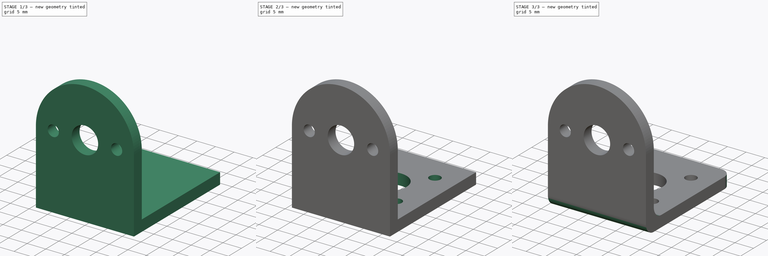
[diagram: build sequence overview — one tinted view per stage of 3, left to right]
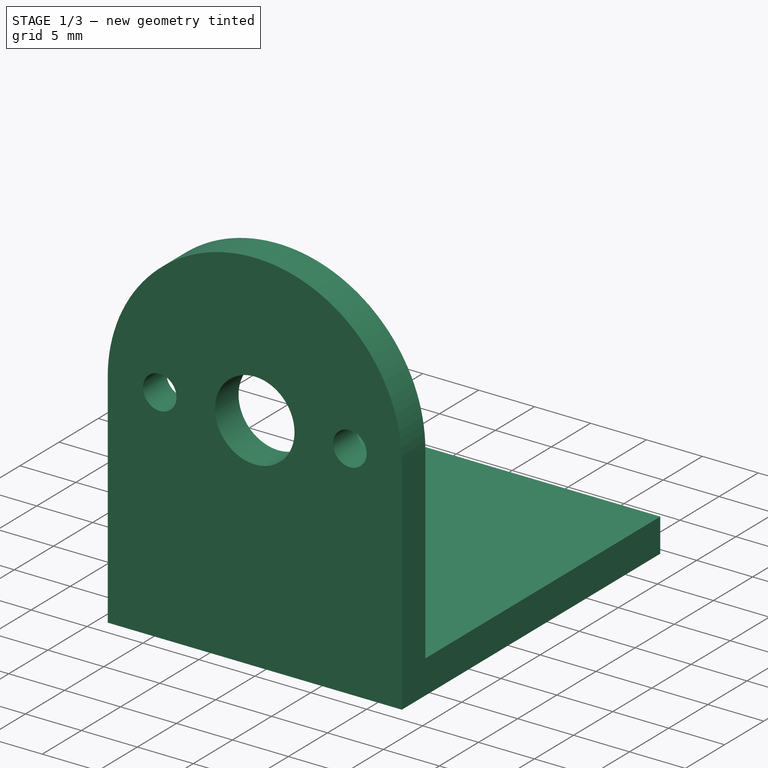
[diagram: stage 1 of 3 — iso view after this stage's code; geometry added in this stage tinted green]
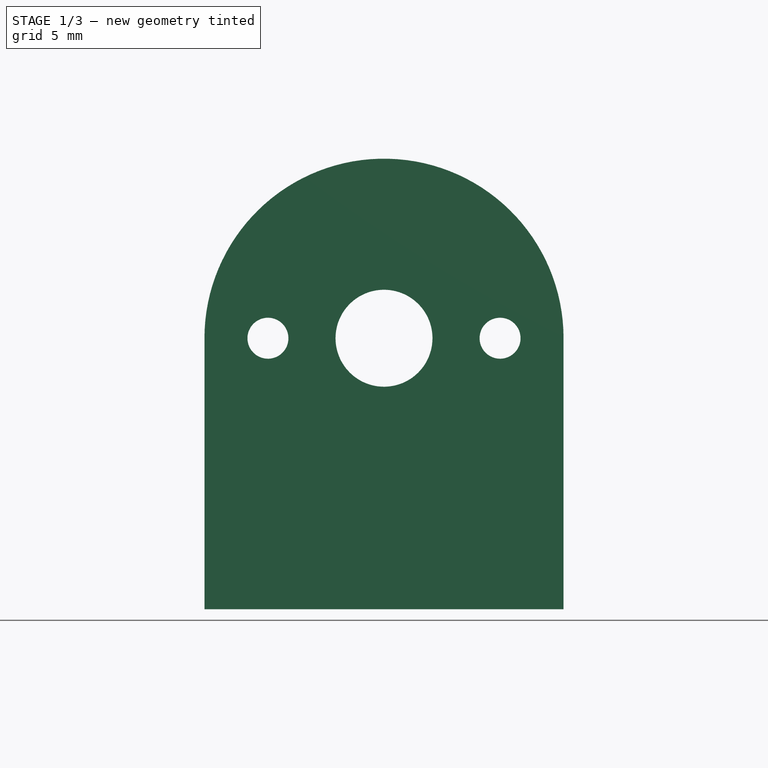
[diagram: stage 1 of 3 — front view after this stage's code; geometry added in this stage tinted green]
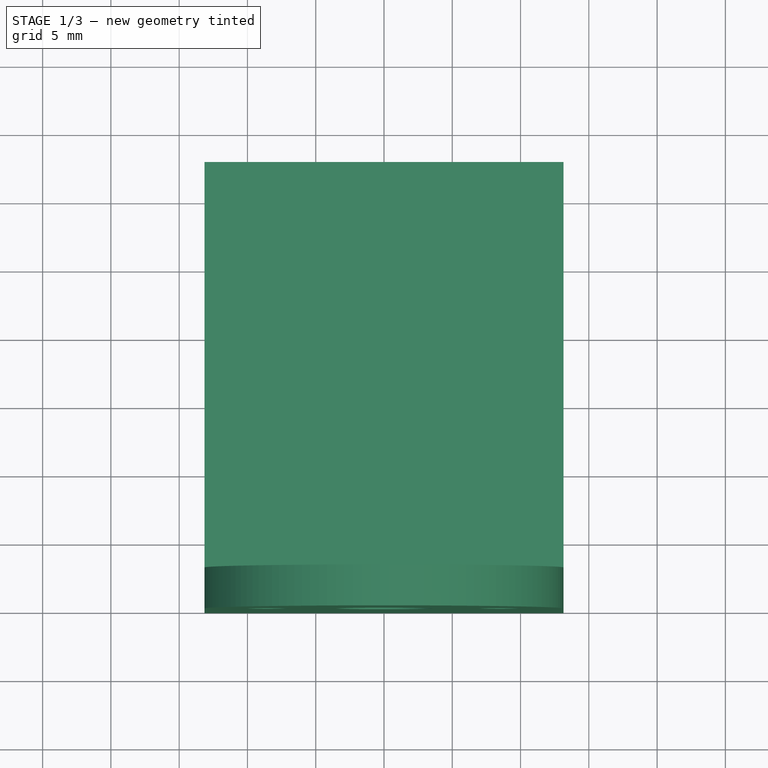
[diagram: stage 1 of 3 — top view after this stage's code; geometry added in this stage tinted green]
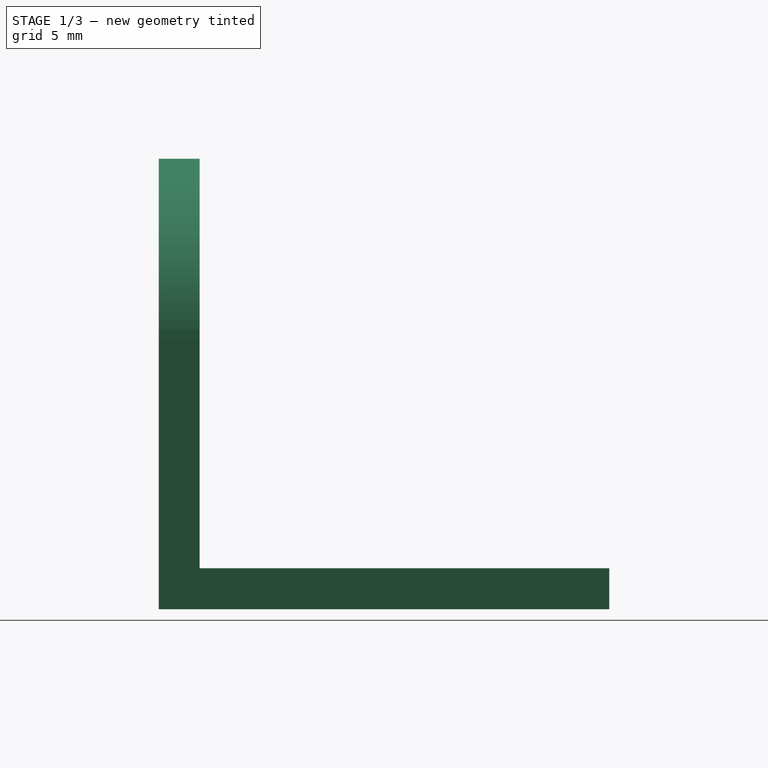
[diagram: stage 1 of 3 — right view after this stage's code; geometry added in this stage tinted green]
FCSTD DOCUMENT  (FreeCAD 1.0R39109 (Git))
Label: motor_mount
License: All rights reserved
LicenseURL: http://en.wikipedia.org/wiki/All_rights_reserved
objects: Sketcher::SketchObject×3, PartDesign::Pad×2, PartDesign::Fillet×2, PartDesign::Pocket×1, PartDesign::Body×1
note: 22 computed .brp shape members not serialized (recipe doc carries the construction recipe); baked Part::Feature solids carry a one-line shape summary decoded from their .brp

FEATURE [Sketcher::SketchObject] Sketch
  ArcFitTolerance = 1e-06
  AttachmentSupport = -> [XZ_Plane]
  FullyConstrained = true
  MakeInternals = false
  MapMode = 5
  Placement = pos=(0,0,0) rot=(1,0,0;1.5708rad)
  sketch-geometry (8):
    g0: ArcOfCircle CenterX=0 CenterY=0 CenterZ=0 NormalX=0 NormalY=0 NormalZ=1 AngleXU=0 Radius=13.15 StartAngle=0 EndAngle=3.14159
    g1: LineSegment StartX=-13.15 StartY=1.6e-15 StartZ=0 EndX=-13.15 EndY=-19.85 EndZ=0
    g2: LineSegment StartX=13.15 StartY=0 StartZ=0 EndX=13.15 EndY=-19.85 EndZ=0
    g3: LineSegment StartX=13.15 StartY=-19.85 StartZ=0 EndX=-13.15 EndY=-19.85 EndZ=0
    g4: Circle CenterX=0 CenterY=0 CenterZ=0 NormalX=0 NormalY=0 NormalZ=1 AngleXU=0 Radius=3.55
    g5: Circle CenterX=8.5 CenterY=0 CenterZ=0 NormalX=0 NormalY=0 NormalZ=1 AngleXU=0 Radius=1.5
    g6: Circle CenterX=-8.5 CenterY=0 CenterZ=0 NormalX=0 NormalY=0 NormalZ=1 AngleXU=0 Radius=1.5
    g7: GeomPoint X=0 Y=13.15 Z=0
  constraints (21):
    c: Coincident(g0,g-1)
    c: PointOnObject(g0,g-1)
    c: Coincident(g1,g0)
    c: Coincident(g2,g0)
    c: Vertical(g2)
    c: Coincident(g3,g2)
    c: Coincident(g3,g1)
    c: Vertical(g1)
    c: Horizontal(g3)
    c: PointOnObject(g0,g-1)
    c: Coincident(g4,g0)
    c: PointOnObject(g5,g-1)
    c: Equal(g6,g5)
    c: Radius(g6) = 1.5
    c: Radius(g4) = 3.55
    c: DistanceX(g6,g5) = 17
    c: Symmetric(g5,g6,g0)
    c: DistanceX(g0,g0) = 26.3
    c: PointOnObject(g7,g0)
    c: PointOnObject(g7,g-2)
    c: DistanceY(g2,g7) = 33
FEATURE [PartDesign::Pad] Pad  label="BasePad"
  Direction = (0,-1,2e-16)
  Length = 3
  Length2 = 10
  Placement = pos=(0,0,0) rot=(1,0,0;1.5708rad)
  Profile = -> Sketch
  ReferenceAxis = -> Sketch [N_Axis]
  Refine = true
  Reversed = true
  Suppressed = false
  Type = 0
FEATURE [Sketcher::SketchObject] Sketch001
  ArcFitTolerance = 1e-06
  AttachmentSupport = -> [Pad]
  ExternalGeometry = -> [Pad]
  FullyConstrained = true
  MakeInternals = false
  MapMode = 5
  Placement = pos=(0,3,0) rot=(-1,0,0;1.5708rad)
  sketch-geometry (4):
    g0: LineSegment StartX=-13.15 StartY=19.85 StartZ=0 EndX=-13.15 EndY=16.85 EndZ=0
    g1: LineSegment StartX=-13.15 StartY=16.85 StartZ=0 EndX=13.15 EndY=16.85 EndZ=0
    g2: LineSegment StartX=13.15 StartY=16.85 StartZ=0 EndX=13.15 EndY=19.85 EndZ=0
    g3: LineSegment StartX=13.15 StartY=19.85 StartZ=0 EndX=-13.15 EndY=19.85 EndZ=0
  constraints (11):
    c: Coincident(g0,g1)
    c: Coincident(g1,g2)
    c: Coincident(g2,g3)
    c: Coincident(g3,g0)
    c: Vertical(g0)
    c: Vertical(g2)
    c: Horizontal(g1)
    c: Horizontal(g3)
    c: Coincident(g0,g-3)
    c: DistanceY(g0,g0) = 3
    c: PointOnObject(g1,g-5)
FEATURE [PartDesign::Pad] Pad001  label="LPad"
  BaseFeature = -> Pad
  Direction = (0,1,2e-16)
  Length = 30
  Length2 = 10
  Placement = pos=(0,0,0) rot=(1,0,0;1.5708rad)
  Profile = -> Sketch001
  ReferenceAxis = -> Sketch001 [N_Axis]
  Refine = true
  Suppressed = false
  Type = 0
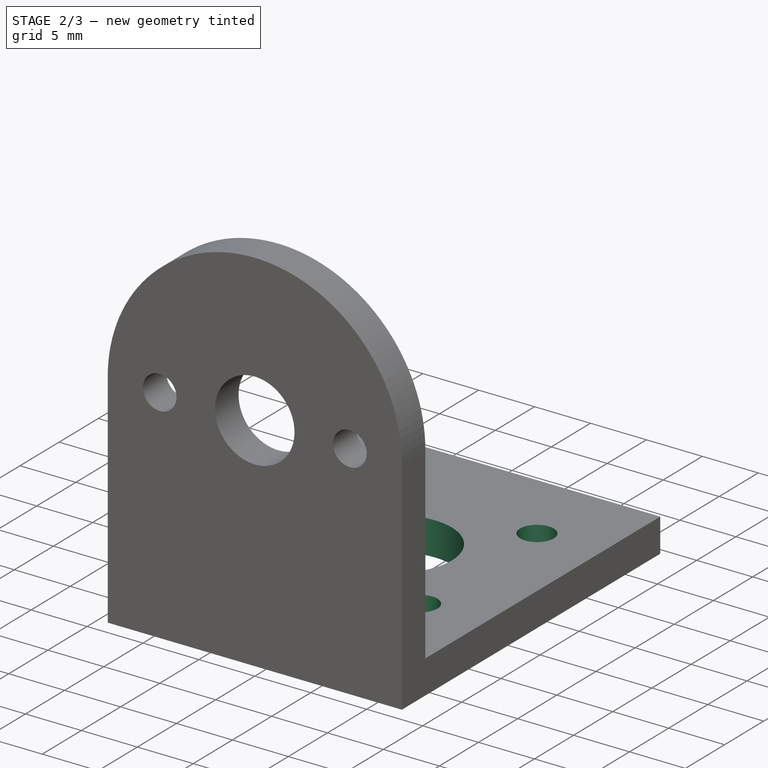
[diagram: stage 2 of 3 — iso view after this stage's code; geometry added in this stage tinted green]
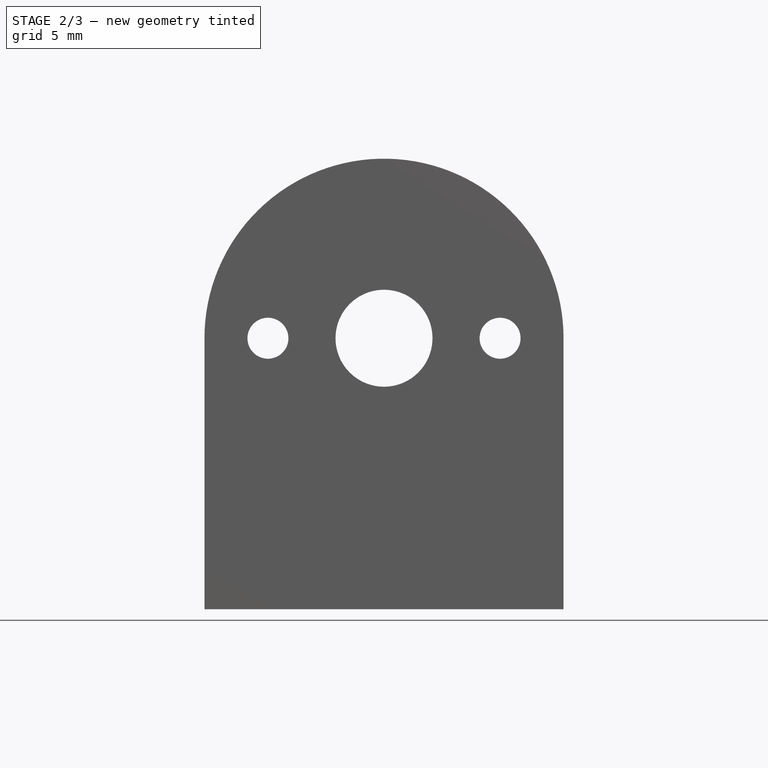
[diagram: stage 2 of 3 — front view after this stage's code; geometry added in this stage tinted green]
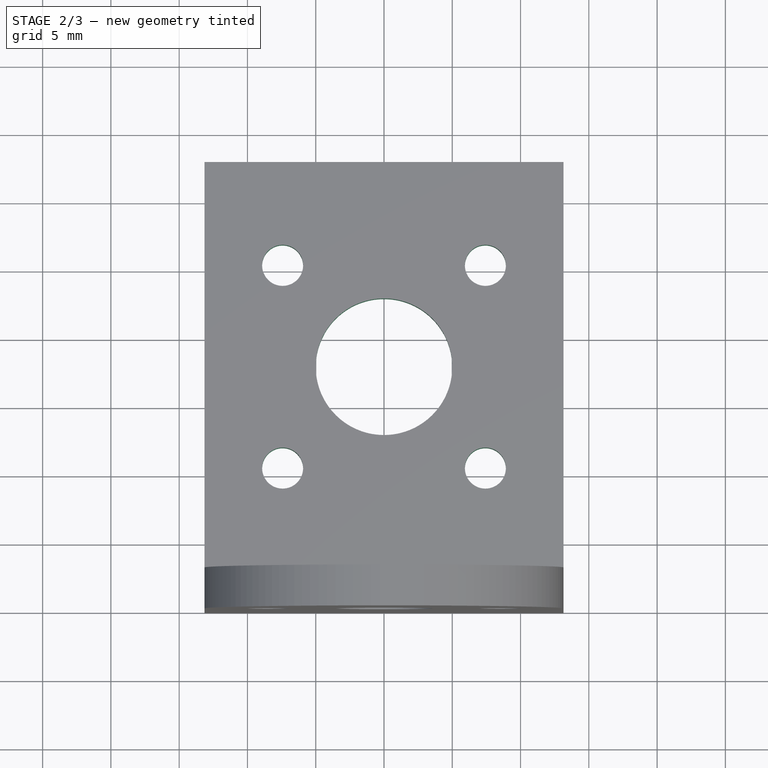
[diagram: stage 2 of 3 — top view after this stage's code; geometry added in this stage tinted green]
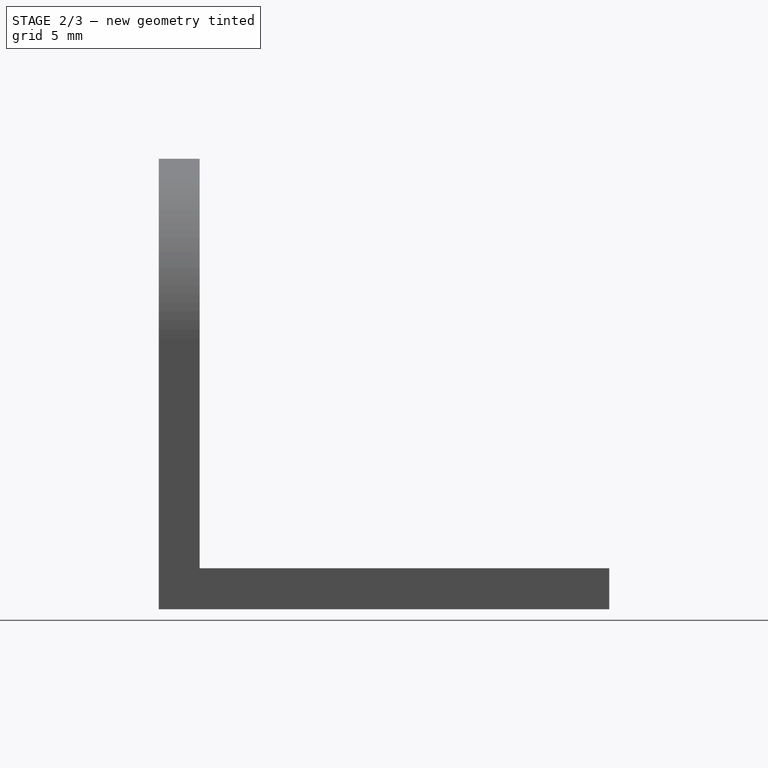
[diagram: stage 2 of 3 — right view after this stage's code; geometry added in this stage tinted green]
FEATURE [Sketcher::SketchObject] Sketch002
  ArcFitTolerance = 1e-06
  AttachmentSupport = -> [Pad001]
  ExternalGeometry = -> [Pad001]
  FullyConstrained = true
  MakeInternals = false
  MapMode = 5
  Placement = pos=(0,0,-16.85) rot=(0,0,1;3.14159rad)
  sketch-geometry (13):
    g0: Circle CenterX=0 CenterY=-18 CenterZ=0 NormalX=0 NormalY=0 NormalZ=1 AngleXU=0 Radius=5
    g1: Circle CenterX=-7.42462 CenterY=-25.4246 CenterZ=0 NormalX=0 NormalY=0 NormalZ=1 AngleXU=0 Radius=1.5
    g2: Circle CenterX=7.42462 CenterY=-25.4246 CenterZ=0 NormalX=0 NormalY=0 NormalZ=1 AngleXU=0 Radius=1.5
    g3: Circle CenterX=7.42462 CenterY=-10.5754 CenterZ=0 NormalX=0 NormalY=0 NormalZ=1 AngleXU=0 Radius=1.5
    g4: Circle CenterX=-7.42462 CenterY=-10.5754 CenterZ=0 NormalX=0 NormalY=0 NormalZ=1 AngleXU=0 Radius=1.5
    g5: GeomPoint X=-13.15 Y=-18 Z=0
    g6: LineSegment [constr] StartX=-7.42462 StartY=-10.5754 StartZ=0 EndX=-7.42462 EndY=-25.4246 EndZ=0
    g7: GeomPoint [constr] X=-7.42462 Y=-18 Z=0
    g8: Circle [constr] CenterX=0 CenterY=-18 CenterZ=0 NormalX=0 NormalY=0 NormalZ=1 AngleXU=0 Radius=10.5
    g9: LineSegment [constr] StartX=-7.42462 StartY=-10.5754 StartZ=0 EndX=7.42462 EndY=-10.5754 EndZ=0
    g10: GeomPoint [constr] X=-3.53553 Y=-21.5355 Z=0
    g11: GeomPoint [constr] X=-6.36396 Y=-24.364 Z=0
    g12: LineSegment [constr] StartX=0 StartY=-18 StartZ=0 EndX=-7.42462 EndY=-25.4246 EndZ=0
  constraints (28):
    c: PointOnObject(g0,g-2)
    c: Horizontal(g2,g1)
    c: Vertical(g3,g2)
    c: Vertical(g1,g4)
    c: Equal(g1,g4)
    c: Equal(g4,g3)
    c: Equal(g3,g2)
    c: Radius(g3) = 1.5
    c: Radius(g0) = 5
    c: Symmetric(g-3,g-3,g5)
    c: Horizontal(g5,g0)
    c: Coincident(g6,g4)
    c: Coincident(g6,g1)
    c: Symmetric(g3,g4,g-2)
    c: Symmetric(g6,g6,g7)
    c: Horizontal(g7,g0)
    c: Coincident(g8,g0)
    c: PointOnObject(g4,g8)
    c: Coincident(g9,g4)
    c: Coincident(g9,g3)
    c: Equal(g9,g6)
    c: PointOnObject(g10,g0)
    c: PointOnObject(g11,g1)
    c: Coincident(g12,g0)
    c: Coincident(g12,g1)
    c: PointOnObject(g10,g12)
    c: PointOnObject(g11,g12)
    c: Distance(g10,g11) = 4
FEATURE [PartDesign::Pocket] Pocket  label="LScrewPocket"
  BaseFeature = -> Pad001
  Direction = (0,0,-1)
  Length = 5
  Length2 = 5
  Placement = pos=(0,0,0) rot=(1,0,0;1.5708rad)
  Profile = -> Sketch002
  ReferenceAxis = -> Sketch002 [N_Axis]
  Refine = true
  Suppressed = false
  Type = 2
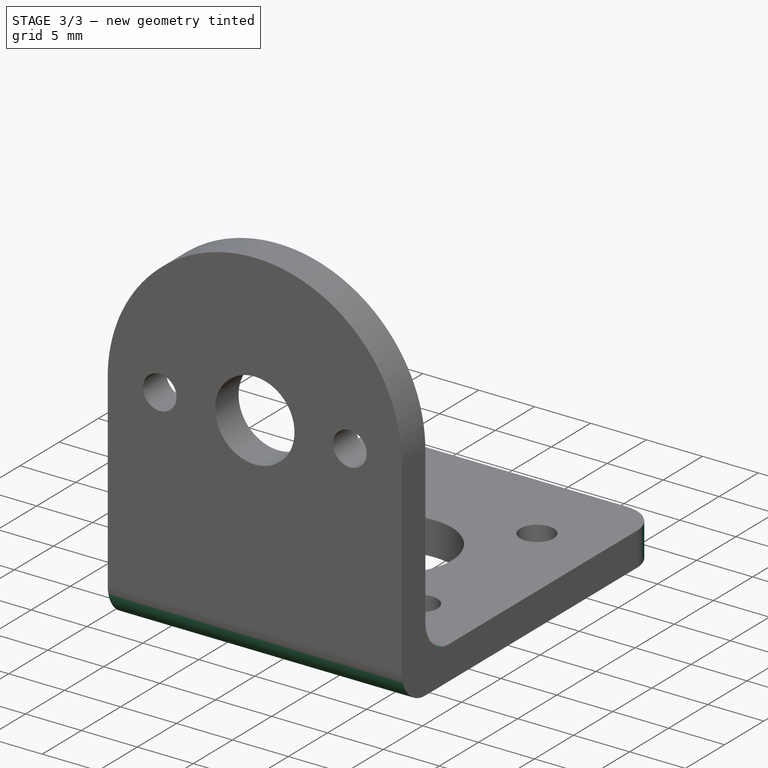
[diagram: stage 3 of 3 — iso view after this stage's code; geometry added in this stage tinted green]
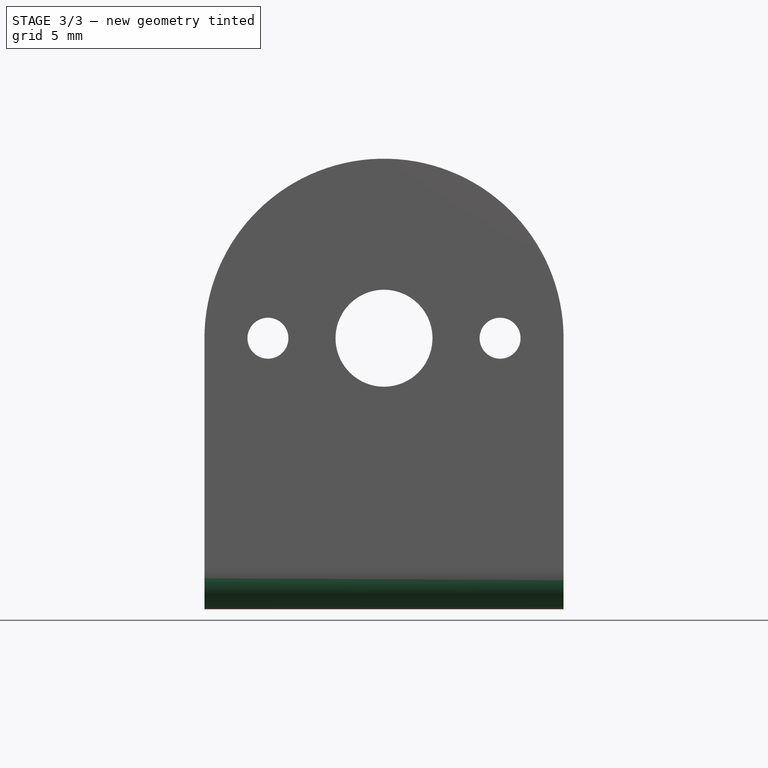
[diagram: stage 3 of 3 — front view after this stage's code; geometry added in this stage tinted green]
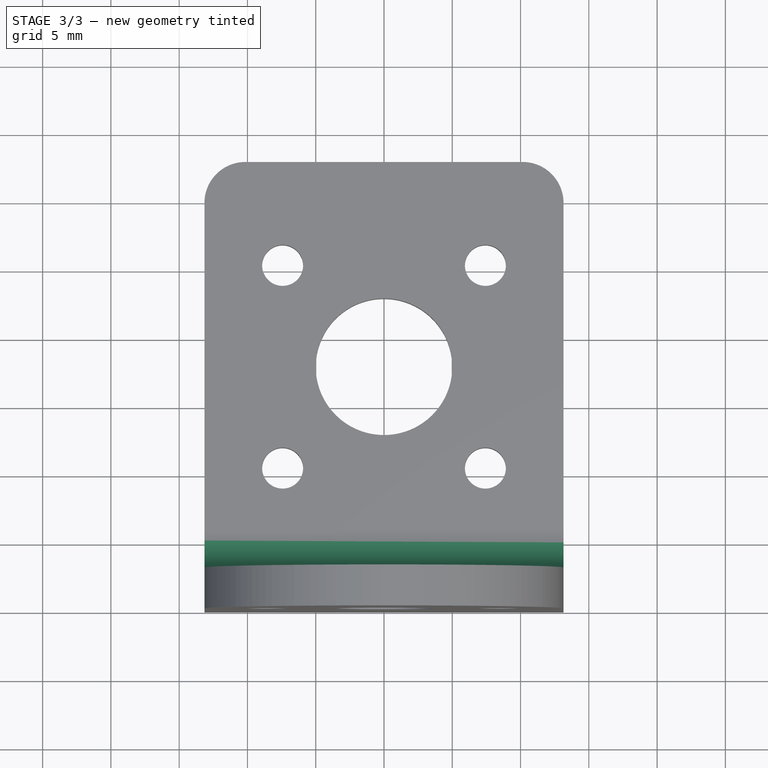
[diagram: stage 3 of 3 — top view after this stage's code; geometry added in this stage tinted green]
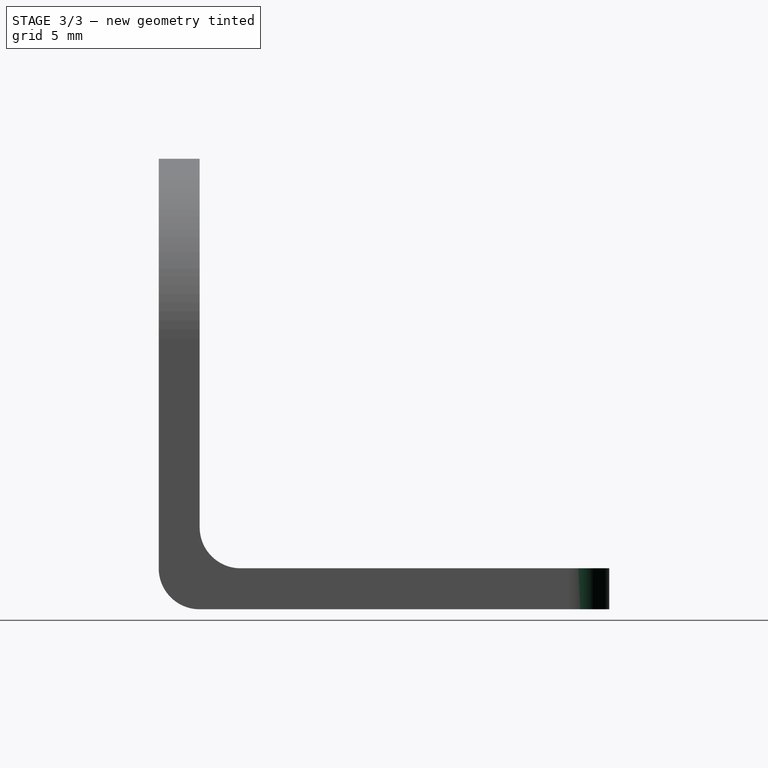
[diagram: stage 3 of 3 — right view after this stage's code; geometry added in this stage tinted green]
FEATURE [PartDesign::Fillet] Fillet  label="ProfileFillets"
  Base = -> Pocket [Edge7,Edge12]
  BaseFeature = -> Pocket
  Placement = pos=(0,0,0) rot=(1,0,0;1.5708rad)
  Radius = 3
  Refine = true
  SupportTransform = false
  Suppressed = false
  UseAllEdges = false
FEATURE [PartDesign::Fillet] Fillet001  label="StructuralFillet"
  Base = -> Fillet [Edge26,Edge8]
  BaseFeature = -> Fillet
  Placement = pos=(0,0,0) rot=(1,0,0;1.5708rad)
  Radius = 3
  Refine = true
  SupportTransform = false
  Suppressed = false
  UseAllEdges = false
FEATURE [PartDesign::Body] Body  label="MotorMount"
  AllowCompound = false
  Group = -> [Sketch,Pad,Sketch001,Pad001,Sketch002,Pocket,Fillet,Fillet001]
  Origin = -> Origin
  Tip = -> Fillet001
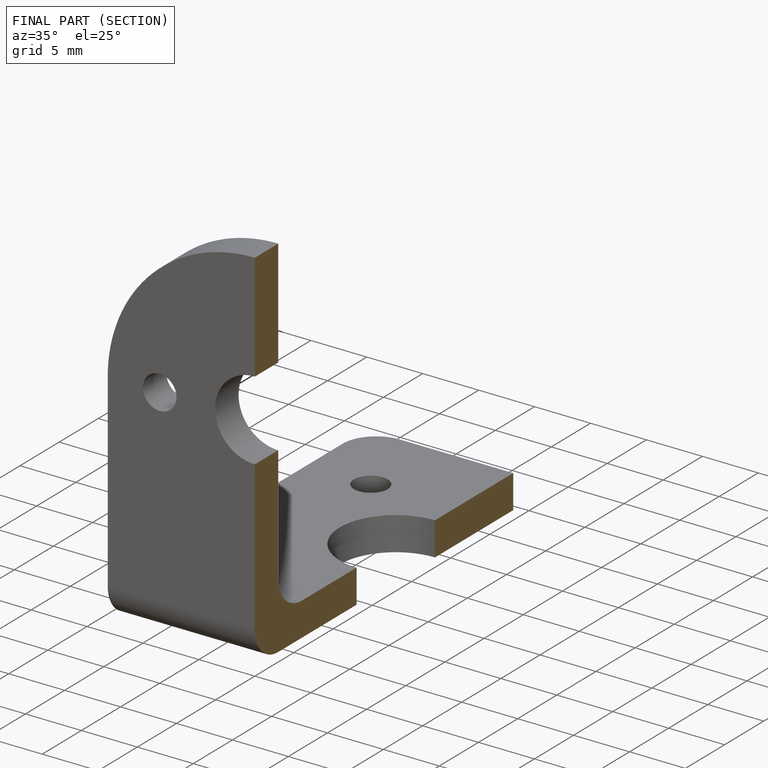
[diagram: finished part — half-section view (interior)]
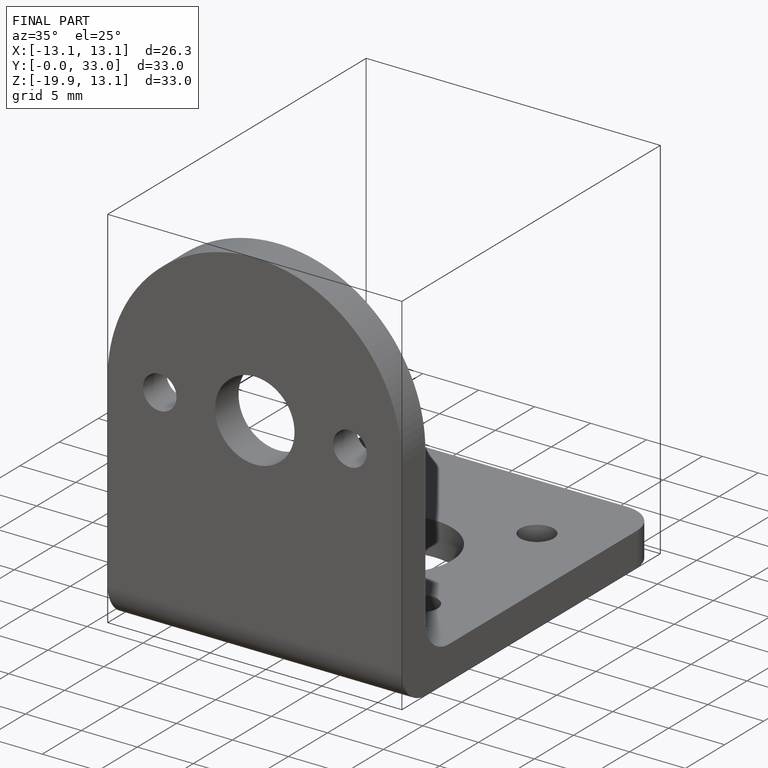
[diagram: finished part — iso view with bounding-box wireframe]
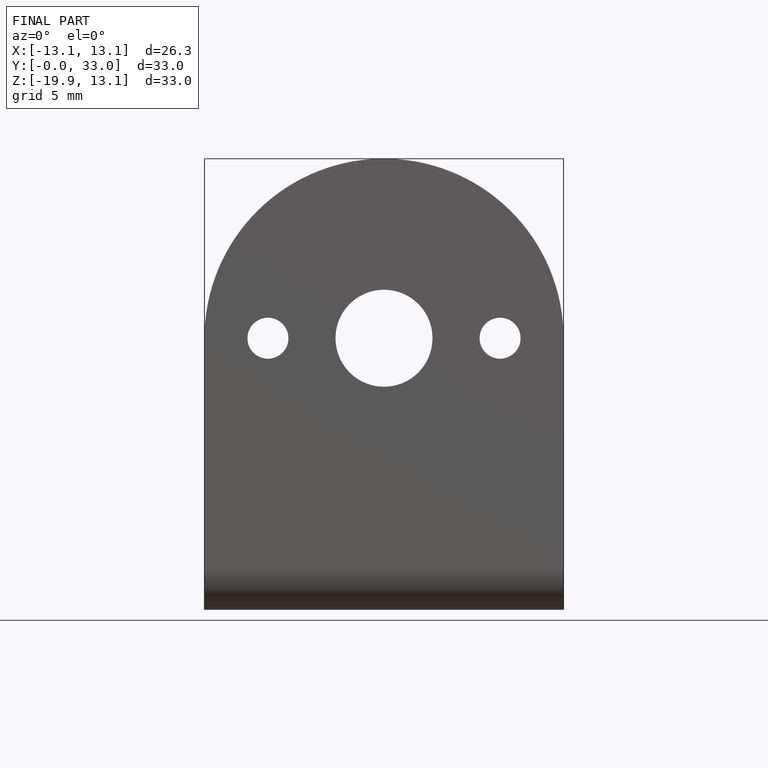
[diagram: finished part — front view with bounding-box wireframe]
